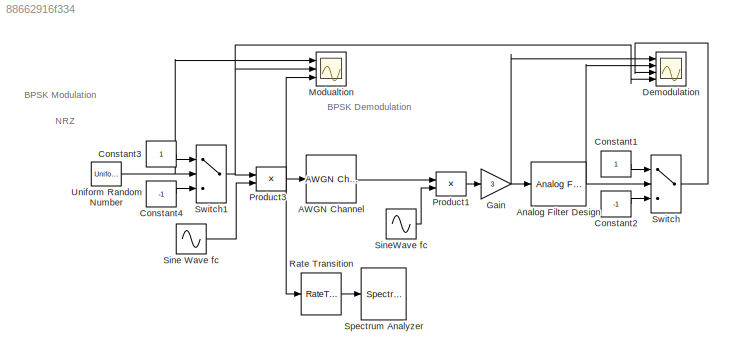
MODEL slx_88662916f334
KIND model
CONFIG AbsTol = auto
CONFIG EnableMultiTasking = off
CONFIG FixedStep = auto
CONFIG MaxStep = 0.01
CONFIG MinStep = 0.00001
CONFIG RelTol = 1e-3
CONFIG SampleTimeConstraint = Unconstrained
CONFIG Solver = ode45
CONFIG SolverName = ode45
CONFIG StartTime = 0.0
CONFIG StopTime = 10
BLOCK [Reference] AWGN Channel  REF=commchan3/AWGN
Channel
  Ports = [1, 1]
  SourceBlock = commchan3/AWGN\nChannel
  SourceProductBaseCode = CM
  SourceProductName = Communications System Toolbox
  SourceType = AWGN Channel
  UserDataPersistent = on
BLOCK [Reference] Analog Filter Design  REF=dsparch4/Analog
Filter Design
  Ports = [1, 1]
  SourceBlock = dsparch4/Analog\nFilter Design
  SourceProductBaseCode = DS
  SourceProductName = DSP System Toolbox
  SourceType = Analog Filter Design
BLOCK [Constant] Constant1
BLOCK [Constant] Constant2
  Value = -1
BLOCK [Constant] Constant3
BLOCK [Constant] Constant4
  Value = -1
BLOCK [Scope] Demodulation
  NumInputPorts = 4
  Ports = [4]
  ScopeSpecificationString = Simulink.scopes.TimeScopeBlockCfg('CurrentConfiguration', extmgr.ConfigurationSet(extmgr.Configuration('Core','General UI',true,'FigureColor',[0 0 0]),extmgr.Configuration('Core','Source UI',true),extmgr.Configuration('Sources','WiredSimulink',true),extmgr.Configuration('Visuals','Time Domain',true,'SerializedDisplays',{struct('MinYLimReal','-10.33658','MaxYLimReal','5.50052','YLabelReal','','MinY...<+3667ch>
BLOCK [Gain] Gain
  Gain = 3
  OutDataTypeStr = Inherit: Inherit via internal rule
  ParamDataTypeStr = Inherit: Inherit via internal rule
  SaturateOnIntegerOverflow = off
BLOCK [Scope] Modualtion
  NumInputPorts = 3
  Ports = [3]
  ScopeSpecificationString = Simulink.scopes.TimeScopeBlockCfg('CurrentConfiguration', extmgr.ConfigurationSet(extmgr.Configuration('Core','General UI',true,'FigureColor',[0 0 0]),extmgr.Configuration('Core','Source UI',true),extmgr.Configuration('Sources','WiredSimulink',true,'DataLoggingVariableName','ScopeData1'),extmgr.Configuration('Visuals','Time Domain',true,'SerializedDisplays',{struct('MinYLimReal','-1.24853','MaxYLi...<+3104ch>
BLOCK [Product] Product1
  Ports = [2, 1]
  RndMeth = Floor
BLOCK [Product] Product3
  OutDataTypeStr = double
  Ports = [2, 1]
  RndMeth = Floor
BLOCK [RateTransition] Rate Transition
  OutPortSampleTime = 0.01
BLOCK [Sin] Sine Wave fc
  Frequency = 4*2*pi
  Ports = [0, 1]
  SampleTime = 0
BLOCK [Sin] SineWave fc
  Frequency = 4*2*pi
  Ports = [0, 1]
  SampleTime = 0
BLOCK [SpectrumAnalyzer] Spectrum Analyzer
  NumInputPorts = 1
  Ports = [1]
  ScopeSpecificationString = spbscopes.SpectrumAnalyzerBlockCfg('CurrentConfiguration', extmgr.ConfigurationSet(extmgr.Configuration('Core','General UI',true),extmgr.Configuration('Core','Source UI',true),extmgr.Configuration('Sources','WiredSimulink',true),extmgr.Configuration('Sources','SimulinkEvent',false),extmgr.Configuration('Sources','Simulink',false),extmgr.Configuration('Sources','SPTool',false),extmgr.Configuration(...<+3669ch>
BLOCK [Switch] Switch
  Criteria = u2 > Threshold
  RndMeth = Round
  Threshold = 0.0001
BLOCK [Switch] Switch1
  Criteria = u2 > Threshold
  RndMeth = Round
  Threshold = 0.0001
BLOCK [UniformRandomNumber] Uniform Random Number
  SampleTime = 1
ANNOTATION (root): BPSK Demodulation
ANNOTATION (root): BPSK Modulation
ANNOTATION (root): NRZ
LINE AWGN Channel:1 -> Product1:1
NET Analog Filter Design:1 -> Demodulation:2, Switch:2
LINE Constant1:1 -> Switch:1
LINE Constant2:1 -> Switch:3
LINE Constant3:1 -> Switch1:1
LINE Constant4:1 -> Switch1:3
NET Gain:1 -> Analog Filter Design:1, Demodulation:1
LINE Product1:1 -> Gain:1
NET Product3:1 -> AWGN Channel:1, Modualtion:3, Rate Transition:1
LINE Rate Transition:1 -> Spectrum Analyzer:1
LINE Sine Wave fc:1 -> Product3:2
LINE SineWave fc:1 -> Product1:2
NET Switch1:1 -> Demodulation:4, Modualtion:2, Product3:1
LINE Switch:1 -> Demodulation:3
NET Uniform Random Number:1 -> Modualtion:1, Switch1:2
note: NET lines group one-source signal fan-out (src -> all destinations, sorted); 1:1 wires keep LINE
